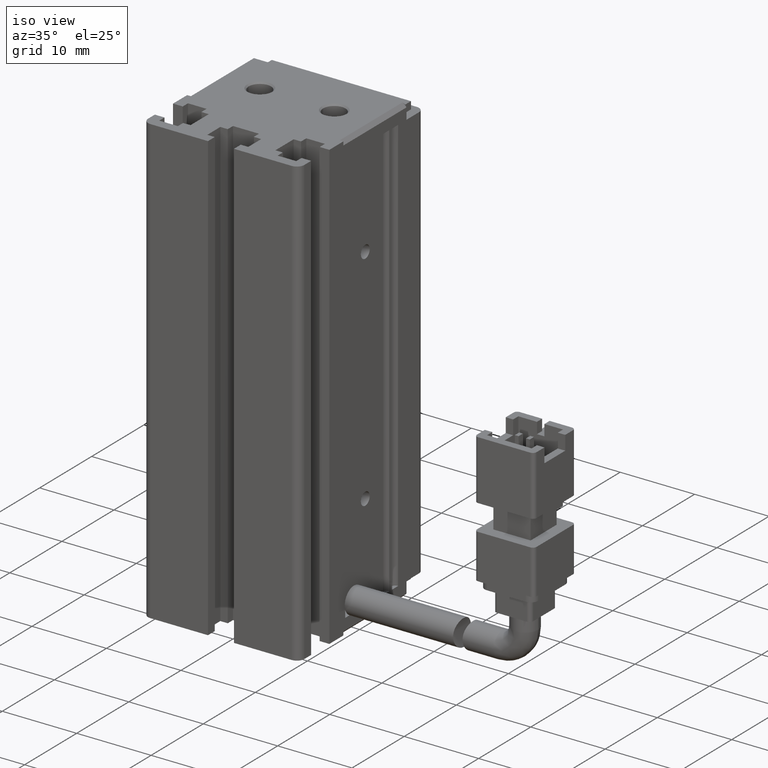
[diagram: clean part render]
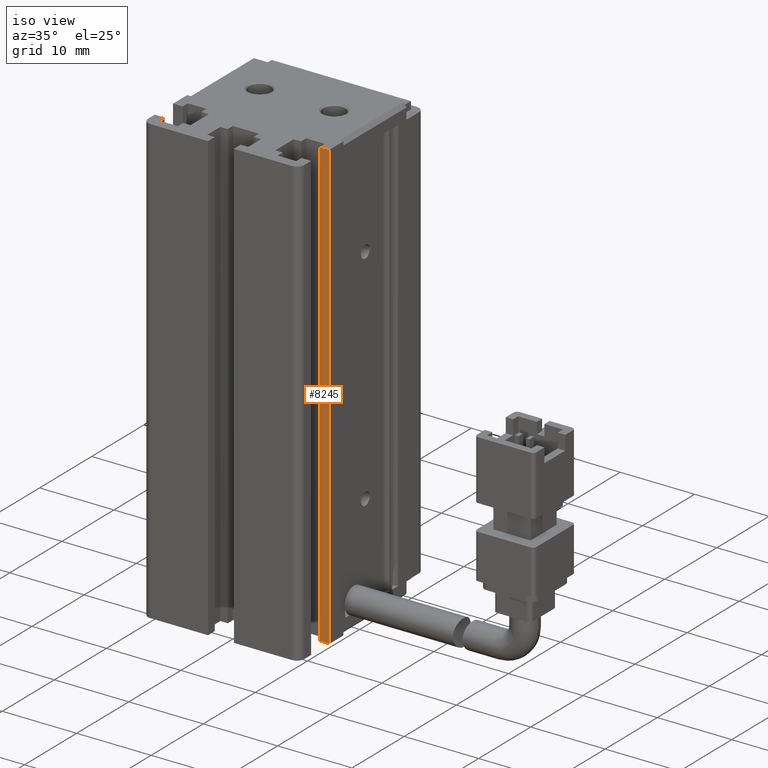
[diagram: same view with one face highlighted and labeled with its STEP entity id]
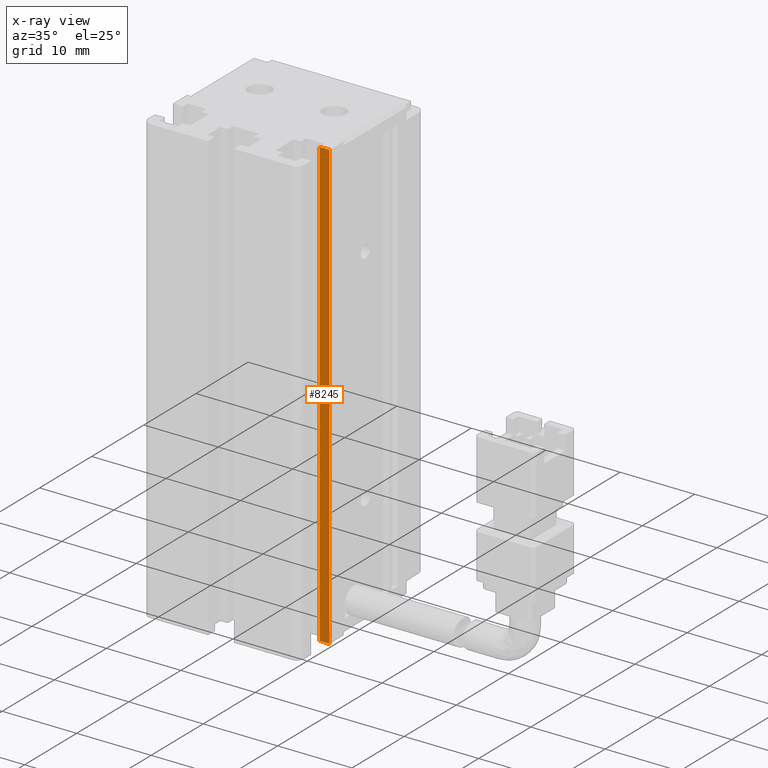
[diagram: x-ray of the same camera — body ghosted, the highlighted face saturated]
A machine part, iso view. The second image highlights one B-rep face of the part: STEP entity #8245.
The next image is the same camera in x-ray: the body ghosted, the highlighted face saturated — about 0% of this face is hidden behind the body in this view.
In plain terms, the highlighted planar face has unit normal (-0, -1, 0).
Its self-contained STEP definition (entity closure, byte-faithful):
#1197 = ORIENTED_EDGE ( 'NONE', *, *, #22141, .T. ) ;
#1312 = AXIS2_PLACEMENT_3D ( 'NONE', #21601, #15118, #19672 ) ;
#2480 = VECTOR ( 'NONE', #19670, 1000.000000000000000 ) ;
#3983 = CARTESIAN_POINT ( 'NONE',  ( 40.92537974683542500, 12.88379746835443600, -145.0000000000000300 ) ) ;
#5117 = CARTESIAN_POINT ( 'NONE',  ( 39.62537974683541400, 12.88379746835443400, -145.0000000000000300 ) ) ;
#5239 = VERTEX_POINT ( 'NONE', #5972 ) ;
#5972 = CARTESIAN_POINT ( 'NONE',  ( 39.62537974683541400, 12.88379746835443400, -85.00000000000000000 ) ) ;
#7203 = LINE ( 'NONE', #3983, #18584 ) ;
#7798 = ORIENTED_EDGE ( 'NONE', *, *, #8209, .T. ) ;
#7929 = DIRECTION ( 'NONE',  ( -1.000000000000000000, 6.672013369141516900E-016, -0.0000000000000000000 ) ) ;
#8209 = EDGE_CURVE ( 'NONE', #11261, #25988, #7203, .T. ) ;
#8245 = ADVANCED_FACE ( 'NONE', ( #24452 ), #14924, .T. ) ;
#9984 = CARTESIAN_POINT ( 'NONE',  ( 40.92537974683542500, 12.88379746835443400, -85.00000000000000000 ) ) ;
#10794 = CARTESIAN_POINT ( 'NONE',  ( 39.62537974683541400, 12.88379746835443600, -85.00000000000000000 ) ) ;
#11261 = VERTEX_POINT ( 'NONE', #5117 ) ;
#11334 = VERTEX_POINT ( 'NONE', #9984 ) ;
#12038 = LINE ( 'NONE', #20906, #27265 ) ;
#12885 = VECTOR ( 'NONE', #7929, 1000.000000000000000 ) ;
#14924 = PLANE ( 'NONE',  #1312 ) ;
#15118 = DIRECTION ( 'NONE',  ( -6.672013369141516900E-016, -1.000000000000000000, 0.0000000000000000000 ) ) ;
#15255 = LINE ( 'NONE', #21114, #12885 ) ;
#16438 = ORIENTED_EDGE ( 'NONE', *, *, #19809, .T. ) ;
#17254 = DIRECTION ( 'NONE',  ( 1.000000000000000000, 0.0000000000000000000, 0.0000000000000000000 ) ) ;
#18584 = VECTOR ( 'NONE', #17254, 1000.000000000000000 ) ;
#19670 = DIRECTION ( 'NONE',  ( -0.0000000000000000000, -0.0000000000000000000, -1.000000000000000000 ) ) ;
#19672 = DIRECTION ( 'NONE',  ( 1.000000000000000000, -6.672013369141516900E-016, 0.0000000000000000000 ) ) ;
#19809 = EDGE_CURVE ( 'NONE', #25988, #11334, #12038, .T. ) ;
#19946 = ORIENTED_EDGE ( 'NONE', *, *, #25808, .T. ) ;
#20906 = CARTESIAN_POINT ( 'NONE',  ( 40.92537974683542500, 12.88379746835443400, -85.00000000000000000 ) ) ;
#21114 = CARTESIAN_POINT ( 'NONE',  ( 40.92537974683543200, 12.88379746835443400, -85.00000000000000000 ) ) ;
#21601 = CARTESIAN_POINT ( 'NONE',  ( 40.92537974683543200, 12.88379746835443400, -85.00000000000000000 ) ) ;
#22091 = CARTESIAN_POINT ( 'NONE',  ( 40.92537974683542500, 12.88379746835443400, -145.0000000000000300 ) ) ;
#22141 = EDGE_CURVE ( 'NONE', #5239, #11261, #25537, .T. ) ;
#23134 = DIRECTION ( 'NONE',  ( 0.0000000000000000000, 0.0000000000000000000, 1.000000000000000000 ) ) ;
#24452 = FACE_OUTER_BOUND ( 'NONE', #28156, .T. ) ;
#25537 = LINE ( 'NONE', #10794, #2480 ) ;
#25808 = EDGE_CURVE ( 'NONE', #11334, #5239, #15255, .T. ) ;
#25988 = VERTEX_POINT ( 'NONE', #22091 ) ;
#27265 = VECTOR ( 'NONE', #23134, 1000.000000000000000 ) ;
#28156 = EDGE_LOOP ( 'NONE', ( #19946, #1197, #7798, #16438 ) ) ;